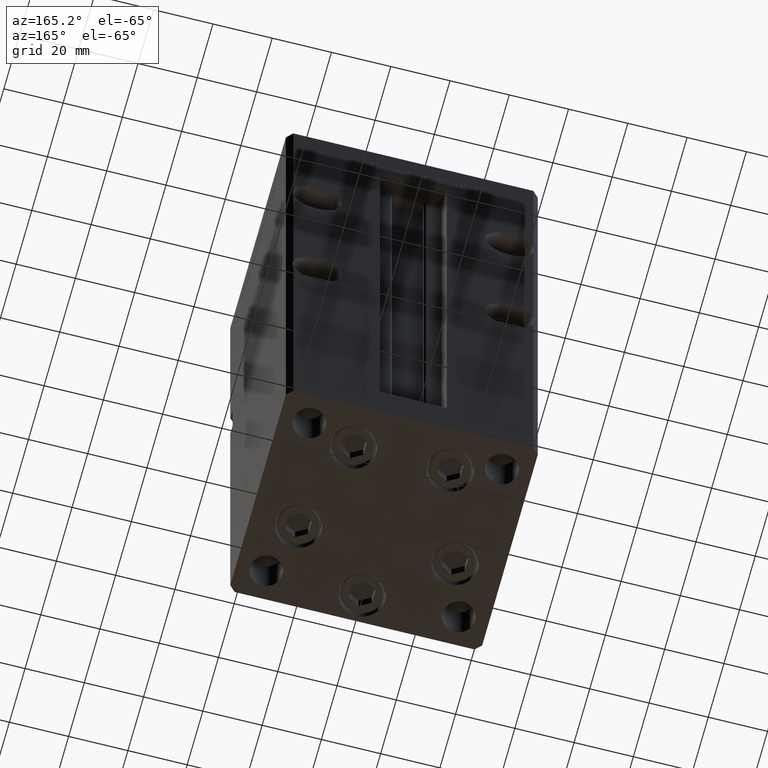
[diagram: clean part render]
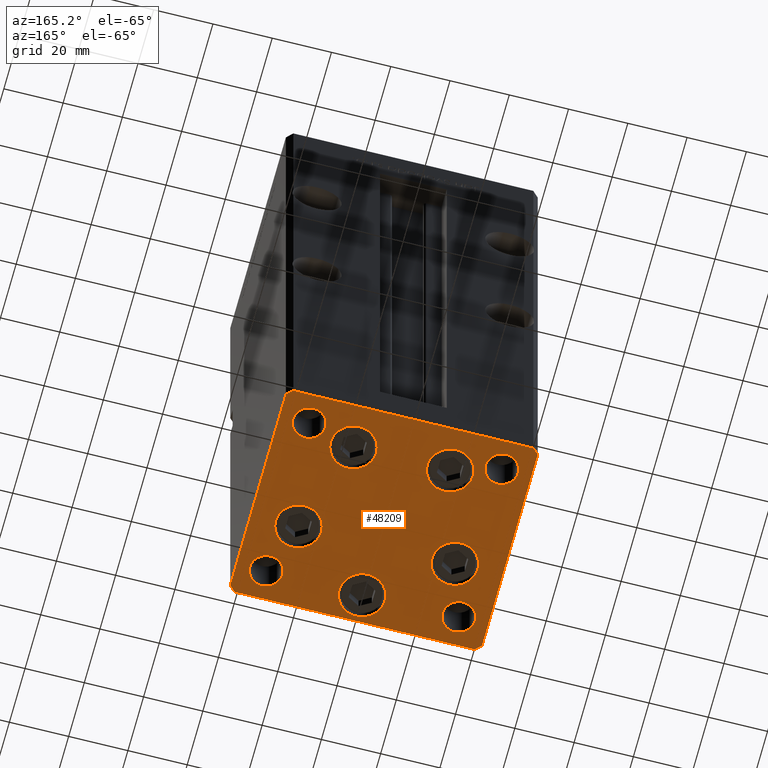
[diagram: same view with one face highlighted and labeled with its STEP entity id]
A machine part, auxiliary view. The second image highlights one B-rep face of the part: STEP entity #48209.
In plain terms, the highlighted planar face has unit normal (0, 0, -1).
Its self-contained STEP definition (entity closure, byte-faithful):
#66 = ORIENTED_EDGE ( 'NONE', *, *, #51529, .T. ) ;
#159 = VECTOR ( 'NONE', #28760, 1000.000000000000000 ) ;
#195 = CIRCLE ( 'NONE', #15653, 5.499999999999998224 ) ;
#269 = VERTEX_POINT ( 'NONE', #26554 ) ;
#351 = CIRCLE ( 'NONE', #33814, 5.499999999999998224 ) ;
#414 = AXIS2_PLACEMENT_3D ( 'NONE', #46402, #5515, #38314 ) ;
#458 = CARTESIAN_POINT ( 'NONE',  ( 26.39865316429776954, -9.333333333333330373, 0.000000000000000000 ) ) ;
#643 = ORIENTED_EDGE ( 'NONE', *, *, #41071, .T. ) ;
#1370 = LINE ( 'NONE', #51398, #50003 ) ;
#1376 = FACE_BOUND ( 'NONE', #12760, .T. ) ;
#1642 = FACE_BOUND ( 'NONE', #31863, .T. ) ;
#1801 = CARTESIAN_POINT ( 'NONE',  ( -8.572913342905431833, 22.74999999999999645, 0.000000000000000000 ) ) ;
#2656 = EDGE_CURVE ( 'NONE', #269, #27731, #195, .T. ) ;
#2742 = DIRECTION ( 'NONE',  ( 1.000000000000000000, 1.713307136767217096E-16, 0.000000000000000000 ) ) ;
#2747 = CARTESIAN_POINT ( 'NONE',  ( -42.50000000000000000, -35.50000000000000711, 0.000000000000000000 ) ) ;
#2856 = ORIENTED_EDGE ( 'NONE', *, *, #9362, .T. ) ;
#3330 = ORIENTED_EDGE ( 'NONE', *, *, #40963, .T. ) ;
#3408 = LINE ( 'NONE', #23857, #18042 ) ;
#3807 = VECTOR ( 'NONE', #24531, 1000.000000000000000 ) ;
#4280 = CIRCLE ( 'NONE', #33501, 7.750000000000003553 ) ;
#4317 = VERTEX_POINT ( 'NONE', #30675 ) ;
#4578 = CARTESIAN_POINT ( 'NONE',  ( -42.50000000000000000, -35.50000000000000711, 0.000000000000000000 ) ) ;
#4782 = DIRECTION ( 'NONE',  ( 1.000000000000000000, 0.000000000000000000, 0.000000000000000000 ) ) ;
#4920 = EDGE_CURVE ( 'NONE', #6575, #53023, #15724, .T. ) ;
#4995 = EDGE_LOOP ( 'NONE', ( #33367, #7082 ) ) ;
#5014 = CARTESIAN_POINT ( 'NONE',  ( -42.50000000000000711, 35.49999999999997158, 0.000000000000000000 ) ) ;
#5164 = DIRECTION ( 'NONE',  ( 1.000000000000000000, 0.000000000000000000, 0.000000000000000000 ) ) ;
#5241 = CIRCLE ( 'NONE', #19867, 5.499999999999998224 ) ;
#5343 = DIRECTION ( 'NONE',  ( 1.000000000000000000, 0.000000000000000000, 0.000000000000000000 ) ) ;
#5348 = VERTEX_POINT ( 'NONE', #44107 ) ;
#5515 = DIRECTION ( 'NONE',  ( 0.000000000000000000, -0.000000000000000000, -1.000000000000000000 ) ) ;
#5886 = DIRECTION ( 'NONE',  ( -0.000000000000000000, 0.000000000000000000, 1.000000000000000000 ) ) ;
#5978 = LINE ( 'NONE', #21597, #18003 ) ;
#6432 = ORIENTED_EDGE ( 'NONE', *, *, #26341, .T. ) ;
#6575 = VERTEX_POINT ( 'NONE', #48726 ) ;
#6661 = VERTEX_POINT ( 'NONE', #46015 ) ;
#6798 = LINE ( 'NONE', #2747, #159 ) ;
#7053 = LINE ( 'NONE', #26421, #17664 ) ;
#7082 = ORIENTED_EDGE ( 'NONE', *, *, #45105, .T. ) ;
#7285 = CIRCLE ( 'NONE', #414, 5.499999999999998224 ) ;
#7336 = DIRECTION ( 'NONE',  ( 1.000000000000000000, 0.000000000000000000, 0.000000000000000000 ) ) ;
#7635 = CARTESIAN_POINT ( 'NONE',  ( -32.50000000000000000, -27.49999999999999645, 0.000000000000000000 ) ) ;
#8017 = DIRECTION ( 'NONE',  ( 0.000000000000000000, -0.000000000000000000, -1.000000000000000000 ) ) ;
#8148 = CIRCLE ( 'NONE', #51048, 7.750000000000000000 ) ;
#8184 = EDGE_CURVE ( 'NONE', #53023, #6575, #351, .T. ) ;
#8382 = EDGE_CURVE ( 'NONE', #6661, #38567, #49929, .T. ) ;
#8418 = CARTESIAN_POINT ( 'NONE',  ( -40.49999999999999289, -37.50000000000002132, 0.000000000000000000 ) ) ;
#8732 = CARTESIAN_POINT ( 'NONE',  ( -32.50000000000000000, 27.50000000000000355, 0.000000000000000000 ) ) ;
#9044 = EDGE_CURVE ( 'NONE', #4317, #29793, #27889, .T. ) ;
#9084 = CIRCLE ( 'NONE', #28001, 5.499999999999998224 ) ;
#9197 = CARTESIAN_POINT ( 'NONE',  ( -38.00000000000000000, 27.50000000000000355, 0.000000000000000000 ) ) ;
#9219 = CARTESIAN_POINT ( 'NONE',  ( 42.49999999999992895, 35.50000000000000000, 0.000000000000000000 ) ) ;
#9265 = ORIENTED_EDGE ( 'NONE', *, *, #27521, .T. ) ;
#9362 = EDGE_CURVE ( 'NONE', #20046, #38324, #44695, .T. ) ;
#9631 = CARTESIAN_POINT ( 'NONE',  ( 40.50000000000000000, -37.50000000000000711, 0.000000000000000000 ) ) ;
#9665 = DIRECTION ( 'NONE',  ( 1.000000000000000000, 0.000000000000000000, 0.000000000000000000 ) ) ;
#9693 = ORIENTED_EDGE ( 'NONE', *, *, #40633, .T. ) ;
#10000 = CARTESIAN_POINT ( 'NONE',  ( 0.000000000000000000, 0.000000000000000000, 0.000000000000000000 ) ) ;
#10003 = CARTESIAN_POINT ( 'NONE',  ( 27.00000000000000355, 27.49999999999999645, 0.000000000000000000 ) ) ;
#10106 = DIRECTION ( 'NONE',  ( 9.773090005503140331E-17, -1.000000000000000000, 0.000000000000000000 ) ) ;
#10912 = DIRECTION ( 'NONE',  ( 1.000000000000000000, 0.000000000000000000, 0.000000000000000000 ) ) ;
#10965 = DIRECTION ( 'NONE',  ( -0.000000000000000000, 0.000000000000000000, 1.000000000000000000 ) ) ;
#11792 = CARTESIAN_POINT ( 'NONE',  ( -26.39865316429776954, -9.333333333333337478, 0.000000000000000000 ) ) ;
#11930 = ORIENTED_EDGE ( 'NONE', *, *, #39360, .T. ) ;
#12508 = DIRECTION ( 'NONE',  ( 1.000000000000000000, 0.000000000000000000, 0.000000000000000000 ) ) ;
#12652 = VERTEX_POINT ( 'NONE', #43897 ) ;
#12760 = EDGE_LOOP ( 'NONE', ( #17492, #9693 ) ) ;
#12784 = CIRCLE ( 'NONE', #50662, 7.750000000000000000 ) ;
#12998 = CARTESIAN_POINT ( 'NONE',  ( -18.64865316429776954, -9.333333333333335702, 0.000000000000000000 ) ) ;
#13118 = VERTEX_POINT ( 'NONE', #9631 ) ;
#13235 = FACE_BOUND ( 'NONE', #51425, .T. ) ;
#13333 = AXIS2_PLACEMENT_3D ( 'NONE', #11792, #8017, #4782 ) ;
#13368 = CIRCLE ( 'NONE', #43419, 7.750000000000000000 ) ;
#13890 = VERTEX_POINT ( 'NONE', #35756 ) ;
#14301 = FACE_BOUND ( 'NONE', #4995, .T. ) ;
#15169 = ORIENTED_EDGE ( 'NONE', *, *, #21085, .T. ) ;
#15249 = ORIENTED_EDGE ( 'NONE', *, *, #52089, .T. ) ;
#15413 = CARTESIAN_POINT ( 'NONE',  ( -26.39865316429776954, -9.333333333333337478, 0.000000000000000000 ) ) ;
#15533 = EDGE_CURVE ( 'NONE', #41725, #47195, #15913, .T. ) ;
#15653 = AXIS2_PLACEMENT_3D ( 'NONE', #7635, #20006, #44476 ) ;
#15724 = CIRCLE ( 'NONE', #32871, 5.499999999999998224 ) ;
#15831 = DIRECTION ( 'NONE',  ( 0.000000000000000000, -0.000000000000000000, -1.000000000000000000 ) ) ;
#15913 = CIRCLE ( 'NONE', #31376, 5.499999999999998224 ) ;
#16022 = EDGE_CURVE ( 'NONE', #5348, #45390, #20205, .T. ) ;
#16461 = CARTESIAN_POINT ( 'NONE',  ( 42.50000000000000711, -35.50000000000000000, 0.000000000000000000 ) ) ;
#16704 = EDGE_CURVE ( 'NONE', #27731, #269, #9084, .T. ) ;
#16754 = AXIS2_PLACEMENT_3D ( 'NONE', #21250, #37636, #25798 ) ;
#17270 = VERTEX_POINT ( 'NONE', #10003 ) ;
#17492 = ORIENTED_EDGE ( 'NONE', *, *, #24645, .T. ) ;
#17625 = AXIS2_PLACEMENT_3D ( 'NONE', #22524, #42405, #17701 ) ;
#17664 = VECTOR ( 'NONE', #2742, 1000.000000000000000 ) ;
#17701 = DIRECTION ( 'NONE',  ( 1.000000000000000000, 0.000000000000000000, 0.000000000000000000 ) ) ;
#17858 = DIRECTION ( 'NONE',  ( -0.000000000000000000, 0.000000000000000000, 1.000000000000000000 ) ) ;
#17892 = DIRECTION ( 'NONE',  ( 1.000000000000000000, 0.000000000000000000, 0.000000000000000000 ) ) ;
#18003 = VECTOR ( 'NONE', #46857, 1000.000000000000000 ) ;
#18042 = VECTOR ( 'NONE', #53165, 1000.000000000000114 ) ;
#18070 = DIRECTION ( 'NONE',  ( -0.000000000000000000, 0.000000000000000000, 1.000000000000000000 ) ) ;
#19867 = AXIS2_PLACEMENT_3D ( 'NONE', #46247, #5886, #9665 ) ;
#20006 = DIRECTION ( 'NONE',  ( 0.000000000000000000, -0.000000000000000000, -1.000000000000000000 ) ) ;
#20046 = VERTEX_POINT ( 'NONE', #43293 ) ;
#20088 = CARTESIAN_POINT ( 'NONE',  ( 8.572913342905422951, 22.75000000000000000, 0.000000000000000000 ) ) ;
#20170 = CARTESIAN_POINT ( 'NONE',  ( 24.07291334290542650, 22.75000000000000000, 0.000000000000000000 ) ) ;
#20205 = CIRCLE ( 'NONE', #13333, 7.750000000000000000 ) ;
#20871 = DIRECTION ( 'NONE',  ( 0.000000000000000000, -0.000000000000000000, -1.000000000000000000 ) ) ;
#20984 = VECTOR ( 'NONE', #10106, 1000.000000000000000 ) ;
#21085 = EDGE_CURVE ( 'NONE', #13890, #27253, #8148, .T. ) ;
#21250 = CARTESIAN_POINT ( 'NONE',  ( 32.50000000000000000, 27.49999999999999645, 0.000000000000000000 ) ) ;
#21597 = CARTESIAN_POINT ( 'NONE',  ( 40.49999999999991473, 37.50000000000000711, 0.000000000000000000 ) ) ;
#21802 = AXIS2_PLACEMENT_3D ( 'NONE', #15413, #31550, #7336 ) ;
#21862 = EDGE_CURVE ( 'NONE', #17270, #23870, #33048, .T. ) ;
#22524 = CARTESIAN_POINT ( 'NONE',  ( 3.429011037612589276E-15, -28.00000000000000000, 0.000000000000000000 ) ) ;
#22863 = ORIENTED_EDGE ( 'NONE', *, *, #27248, .T. ) ;
#22912 = VERTEX_POINT ( 'NONE', #20088 ) ;
#23857 = CARTESIAN_POINT ( 'NONE',  ( 40.50000000000000000, -37.50000000000000711, 0.000000000000000000 ) ) ;
#23870 = VERTEX_POINT ( 'NONE', #52578 ) ;
#24531 = DIRECTION ( 'NONE',  ( -1.172770800660376741E-15, 1.000000000000000000, 0.000000000000000000 ) ) ;
#24645 = EDGE_CURVE ( 'NONE', #27313, #46904, #13368, .T. ) ;
#25105 = AXIS2_PLACEMENT_3D ( 'NONE', #37773, #33477, #46378 ) ;
#25209 = CARTESIAN_POINT ( 'NONE',  ( 34.14865316429776954, -9.333333333333328596, 0.000000000000000000 ) ) ;
#25350 = FACE_OUTER_BOUND ( 'NONE', #28632, .T. ) ;
#25798 = DIRECTION ( 'NONE',  ( 1.000000000000000000, 0.000000000000000000, 0.000000000000000000 ) ) ;
#25858 = DIRECTION ( 'NONE',  ( 1.000000000000000000, 0.000000000000000000, 0.000000000000000000 ) ) ;
#25874 = ORIENTED_EDGE ( 'NONE', *, *, #8382, .T. ) ;
#26341 = EDGE_CURVE ( 'NONE', #47195, #41725, #7285, .T. ) ;
#26421 = CARTESIAN_POINT ( 'NONE',  ( -40.49999999999999289, -37.50000000000002132, 0.000000000000000000 ) ) ;
#26554 = CARTESIAN_POINT ( 'NONE',  ( -27.00000000000000355, -27.49999999999999645, 0.000000000000000000 ) ) ;
#27248 = EDGE_CURVE ( 'NONE', #29793, #4317, #49411, .T. ) ;
#27253 = VERTEX_POINT ( 'NONE', #1801 ) ;
#27313 = VERTEX_POINT ( 'NONE', #32189 ) ;
#27521 = EDGE_CURVE ( 'NONE', #29904, #13118, #7053, .T. ) ;
#27731 = VERTEX_POINT ( 'NONE', #42484 ) ;
#27889 = CIRCLE ( 'NONE', #34738, 7.750000000000000000 ) ;
#28001 = AXIS2_PLACEMENT_3D ( 'NONE', #31963, #15831, #48374 ) ;
#28632 = EDGE_LOOP ( 'NONE', ( #15249, #9265, #643, #2856, #66, #11930, #3330, #25874 ) ) ;
#28691 = ORIENTED_EDGE ( 'NONE', *, *, #9044, .T. ) ;
#28760 = DIRECTION ( 'NONE',  ( 0.7071067811865463515, -0.7071067811865487940, 0.000000000000000000 ) ) ;
#28906 = EDGE_CURVE ( 'NONE', #22912, #29151, #44290, .T. ) ;
#28933 = ORIENTED_EDGE ( 'NONE', *, *, #52025, .T. ) ;
#29151 = VERTEX_POINT ( 'NONE', #20170 ) ;
#29253 = DIRECTION ( 'NONE',  ( 0.000000000000000000, -0.000000000000000000, -1.000000000000000000 ) ) ;
#29793 = VERTEX_POINT ( 'NONE', #40402 ) ;
#29824 = CARTESIAN_POINT ( 'NONE',  ( -16.32291334290543006, 22.74999999999999645, 0.000000000000000000 ) ) ;
#29836 = CARTESIAN_POINT ( 'NONE',  ( 38.00000000000000000, -27.49999999999999645, 0.000000000000000000 ) ) ;
#29904 = VERTEX_POINT ( 'NONE', #8418 ) ;
#30161 = FACE_BOUND ( 'NONE', #37445, .T. ) ;
#30675 = CARTESIAN_POINT ( 'NONE',  ( 7.750000000000003553, -28.00000000000000000, 0.000000000000000000 ) ) ;
#30693 = FACE_BOUND ( 'NONE', #42138, .T. ) ;
#30971 = AXIS2_PLACEMENT_3D ( 'NONE', #10000, #18070, #5164 ) ;
#31345 = CARTESIAN_POINT ( 'NONE',  ( 16.32291334290542295, 22.75000000000000000, 0.000000000000000000 ) ) ;
#31376 = AXIS2_PLACEMENT_3D ( 'NONE', #38738, #42505, #25858 ) ;
#31531 = VERTEX_POINT ( 'NONE', #51971 ) ;
#31550 = DIRECTION ( 'NONE',  ( 0.000000000000000000, -0.000000000000000000, -1.000000000000000000 ) ) ;
#31863 = EDGE_LOOP ( 'NONE', ( #37778, #43962 ) ) ;
#31963 = CARTESIAN_POINT ( 'NONE',  ( -32.50000000000000000, -27.49999999999999645, 0.000000000000000000 ) ) ;
#32189 = CARTESIAN_POINT ( 'NONE',  ( 18.64865316429776954, -9.333333333333330373, 0.000000000000000000 ) ) ;
#32195 = DIRECTION ( 'NONE',  ( 1.000000000000000000, 0.000000000000000000, 0.000000000000000000 ) ) ;
#32871 = AXIS2_PLACEMENT_3D ( 'NONE', #8732, #17858, #12508 ) ;
#32978 = CARTESIAN_POINT ( 'NONE',  ( -40.50000000000000711, 37.49999999999997868, 0.000000000000000000 ) ) ;
#33048 = CIRCLE ( 'NONE', #16754, 5.499999999999998224 ) ;
#33328 = DIRECTION ( 'NONE',  ( 0.000000000000000000, -0.000000000000000000, -1.000000000000000000 ) ) ;
#33367 = ORIENTED_EDGE ( 'NONE', *, *, #28906, .T. ) ;
#33477 = DIRECTION ( 'NONE',  ( 0.000000000000000000, -0.000000000000000000, -1.000000000000000000 ) ) ;
#33483 = ORIENTED_EDGE ( 'NONE', *, *, #48521, .F. ) ;
#33501 = AXIS2_PLACEMENT_3D ( 'NONE', #46132, #20871, #17892 ) ;
#33657 = FACE_BOUND ( 'NONE', #52266, .T. ) ;
#33814 = AXIS2_PLACEMENT_3D ( 'NONE', #52106, #10965, #32195 ) ;
#33993 = AXIS2_PLACEMENT_3D ( 'NONE', #31345, #47757, #10912 ) ;
#34480 = DIRECTION ( 'NONE',  ( 1.000000000000000000, 0.000000000000000000, 0.000000000000000000 ) ) ;
#34738 = AXIS2_PLACEMENT_3D ( 'NONE', #47683, #35822, #44166 ) ;
#34748 = DIRECTION ( 'NONE',  ( 0.000000000000000000, -0.000000000000000000, -1.000000000000000000 ) ) ;
#35756 = CARTESIAN_POINT ( 'NONE',  ( -24.07291334290543006, 22.74999999999999645, 0.000000000000000000 ) ) ;
#35822 = DIRECTION ( 'NONE',  ( 0.000000000000000000, -0.000000000000000000, -1.000000000000000000 ) ) ;
#36131 = ORIENTED_EDGE ( 'NONE', *, *, #2656, .T. ) ;
#37018 = DIRECTION ( 'NONE',  ( -0.7071067811865463515, -0.7071067811865487940, 0.000000000000000000 ) ) ;
#37033 = ORIENTED_EDGE ( 'NONE', *, *, #15533, .T. ) ;
#37445 = EDGE_LOOP ( 'NONE', ( #33483, #38158 ) ) ;
#37636 = DIRECTION ( 'NONE',  ( -0.000000000000000000, 0.000000000000000000, 1.000000000000000000 ) ) ;
#37773 = CARTESIAN_POINT ( 'NONE',  ( -16.32291334290543006, 22.74999999999999645, 0.000000000000000000 ) ) ;
#37778 = ORIENTED_EDGE ( 'NONE', *, *, #4920, .F. ) ;
#38158 = ORIENTED_EDGE ( 'NONE', *, *, #21862, .F. ) ;
#38314 = DIRECTION ( 'NONE',  ( 1.000000000000000000, 0.000000000000000000, 0.000000000000000000 ) ) ;
#38324 = VERTEX_POINT ( 'NONE', #9219 ) ;
#38567 = VERTEX_POINT ( 'NONE', #4578 ) ;
#38738 = CARTESIAN_POINT ( 'NONE',  ( 32.50000000000000000, -27.49999999999999645, 0.000000000000000000 ) ) ;
#39360 = EDGE_CURVE ( 'NONE', #12652, #31531, #5978, .T. ) ;
#39532 = EDGE_LOOP ( 'NONE', ( #51266, #41584 ) ) ;
#40402 = CARTESIAN_POINT ( 'NONE',  ( -7.749999999999996447, -28.00000000000000000, 0.000000000000000000 ) ) ;
#40633 = EDGE_CURVE ( 'NONE', #46904, #27313, #12784, .T. ) ;
#40963 = EDGE_CURVE ( 'NONE', #31531, #6661, #44825, .T. ) ;
#41071 = EDGE_CURVE ( 'NONE', #13118, #20046, #3408, .T. ) ;
#41215 = VECTOR ( 'NONE', #37018, 1000.000000000000000 ) ;
#41584 = ORIENTED_EDGE ( 'NONE', *, *, #52883, .T. ) ;
#41725 = VERTEX_POINT ( 'NONE', #29836 ) ;
#41851 = DIRECTION ( 'NONE',  ( 1.000000000000000000, 0.000000000000000000, 0.000000000000000000 ) ) ;
#42138 = EDGE_LOOP ( 'NONE', ( #37033, #6432 ) ) ;
#42245 = PLANE ( 'NONE',  #30971 ) ;
#42298 = CARTESIAN_POINT ( 'NONE',  ( 27.00000000000000355, -27.49999999999999645, 0.000000000000000000 ) ) ;
#42405 = DIRECTION ( 'NONE',  ( 0.000000000000000000, -0.000000000000000000, -1.000000000000000000 ) ) ;
#42484 = CARTESIAN_POINT ( 'NONE',  ( -38.00000000000000000, -27.49999999999999645, 0.000000000000000000 ) ) ;
#42505 = DIRECTION ( 'NONE',  ( 0.000000000000000000, -0.000000000000000000, -1.000000000000000000 ) ) ;
#42506 = DIRECTION ( 'NONE',  ( -0.7071067811865474617, 0.7071067811865474617, 0.000000000000000000 ) ) ;
#43293 = CARTESIAN_POINT ( 'NONE',  ( 42.50000000000000711, -35.50000000000000000, 0.000000000000000000 ) ) ;
#43419 = AXIS2_PLACEMENT_3D ( 'NONE', #458, #29253, #41851 ) ;
#43897 = CARTESIAN_POINT ( 'NONE',  ( 40.49999999999991473, 37.50000000000000711, 0.000000000000000000 ) ) ;
#43962 = ORIENTED_EDGE ( 'NONE', *, *, #8184, .F. ) ;
#44107 = CARTESIAN_POINT ( 'NONE',  ( -34.14865316429776954, -9.333333333333337478, 0.000000000000000000 ) ) ;
#44166 = DIRECTION ( 'NONE',  ( 1.000000000000000000, 0.000000000000000000, 0.000000000000000000 ) ) ;
#44290 = CIRCLE ( 'NONE', #33993, 7.750000000000003553 ) ;
#44476 = DIRECTION ( 'NONE',  ( 1.000000000000000000, 0.000000000000000000, 0.000000000000000000 ) ) ;
#44695 = LINE ( 'NONE', #16461, #3807 ) ;
#44825 = LINE ( 'NONE', #32978, #41215 ) ;
#45105 = EDGE_CURVE ( 'NONE', #29151, #22912, #4280, .T. ) ;
#45390 = VERTEX_POINT ( 'NONE', #12998 ) ;
#45716 = ORIENTED_EDGE ( 'NONE', *, *, #16704, .T. ) ;
#46015 = CARTESIAN_POINT ( 'NONE',  ( -42.50000000000000711, 35.49999999999997158, 0.000000000000000000 ) ) ;
#46132 = CARTESIAN_POINT ( 'NONE',  ( 16.32291334290542295, 22.75000000000000000, 0.000000000000000000 ) ) ;
#46247 = CARTESIAN_POINT ( 'NONE',  ( 32.50000000000000000, 27.49999999999999645, 0.000000000000000000 ) ) ;
#46378 = DIRECTION ( 'NONE',  ( 1.000000000000000000, 0.000000000000000000, 0.000000000000000000 ) ) ;
#46402 = CARTESIAN_POINT ( 'NONE',  ( 32.50000000000000000, -27.49999999999999645, 0.000000000000000000 ) ) ;
#46543 = CIRCLE ( 'NONE', #25105, 7.750000000000000000 ) ;
#46857 = DIRECTION ( 'NONE',  ( -1.000000000000000000, -3.426614273534436165E-16, 0.000000000000000000 ) ) ;
#46904 = VERTEX_POINT ( 'NONE', #25209 ) ;
#47195 = VERTEX_POINT ( 'NONE', #42298 ) ;
#47571 = CIRCLE ( 'NONE', #21802, 7.750000000000000000 ) ;
#47683 = CARTESIAN_POINT ( 'NONE',  ( 3.429011037612589276E-15, -28.00000000000000000, 0.000000000000000000 ) ) ;
#47757 = DIRECTION ( 'NONE',  ( 0.000000000000000000, -0.000000000000000000, -1.000000000000000000 ) ) ;
#48209 = ADVANCED_FACE ( 'NONE', ( #50077, #14301, #1376, #13235, #50606, #30161, #30693, #1642, #25350, #33657 ), #42245, .T. ) ;
#48374 = DIRECTION ( 'NONE',  ( 1.000000000000000000, 0.000000000000000000, 0.000000000000000000 ) ) ;
#48521 = EDGE_CURVE ( 'NONE', #23870, #17270, #5241, .T. ) ;
#48726 = CARTESIAN_POINT ( 'NONE',  ( -27.00000000000000355, 27.50000000000000355, 0.000000000000000000 ) ) ;
#49411 = CIRCLE ( 'NONE', #17625, 7.750000000000000000 ) ;
#49863 = EDGE_LOOP ( 'NONE', ( #15169, #28933 ) ) ;
#49929 = LINE ( 'NONE', #5014, #20984 ) ;
#50003 = VECTOR ( 'NONE', #42506, 1000.000000000000114 ) ;
#50077 = FACE_BOUND ( 'NONE', #49863, .T. ) ;
#50606 = FACE_BOUND ( 'NONE', #39532, .T. ) ;
#50662 = AXIS2_PLACEMENT_3D ( 'NONE', #51171, #34748, #34480 ) ;
#51048 = AXIS2_PLACEMENT_3D ( 'NONE', #29824, #33328, #5343 ) ;
#51171 = CARTESIAN_POINT ( 'NONE',  ( 26.39865316429776954, -9.333333333333330373, 0.000000000000000000 ) ) ;
#51266 = ORIENTED_EDGE ( 'NONE', *, *, #16022, .T. ) ;
#51398 = CARTESIAN_POINT ( 'NONE',  ( 42.49999999999992895, 35.50000000000000000, 0.000000000000000000 ) ) ;
#51425 = EDGE_LOOP ( 'NONE', ( #22863, #28691 ) ) ;
#51529 = EDGE_CURVE ( 'NONE', #38324, #12652, #1370, .T. ) ;
#51971 = CARTESIAN_POINT ( 'NONE',  ( -40.50000000000000711, 37.49999999999997868, 0.000000000000000000 ) ) ;
#52025 = EDGE_CURVE ( 'NONE', #27253, #13890, #46543, .T. ) ;
#52089 = EDGE_CURVE ( 'NONE', #38567, #29904, #6798, .T. ) ;
#52106 = CARTESIAN_POINT ( 'NONE',  ( -32.50000000000000000, 27.50000000000000355, 0.000000000000000000 ) ) ;
#52266 = EDGE_LOOP ( 'NONE', ( #36131, #45716 ) ) ;
#52578 = CARTESIAN_POINT ( 'NONE',  ( 38.00000000000000000, 27.49999999999999645, 0.000000000000000000 ) ) ;
#52883 = EDGE_CURVE ( 'NONE', #45390, #5348, #47571, .T. ) ;
#53023 = VERTEX_POINT ( 'NONE', #9197 ) ;
#53165 = DIRECTION ( 'NONE',  ( 0.7071067811865474617, 0.7071067811865474617, 0.000000000000000000 ) ) ;